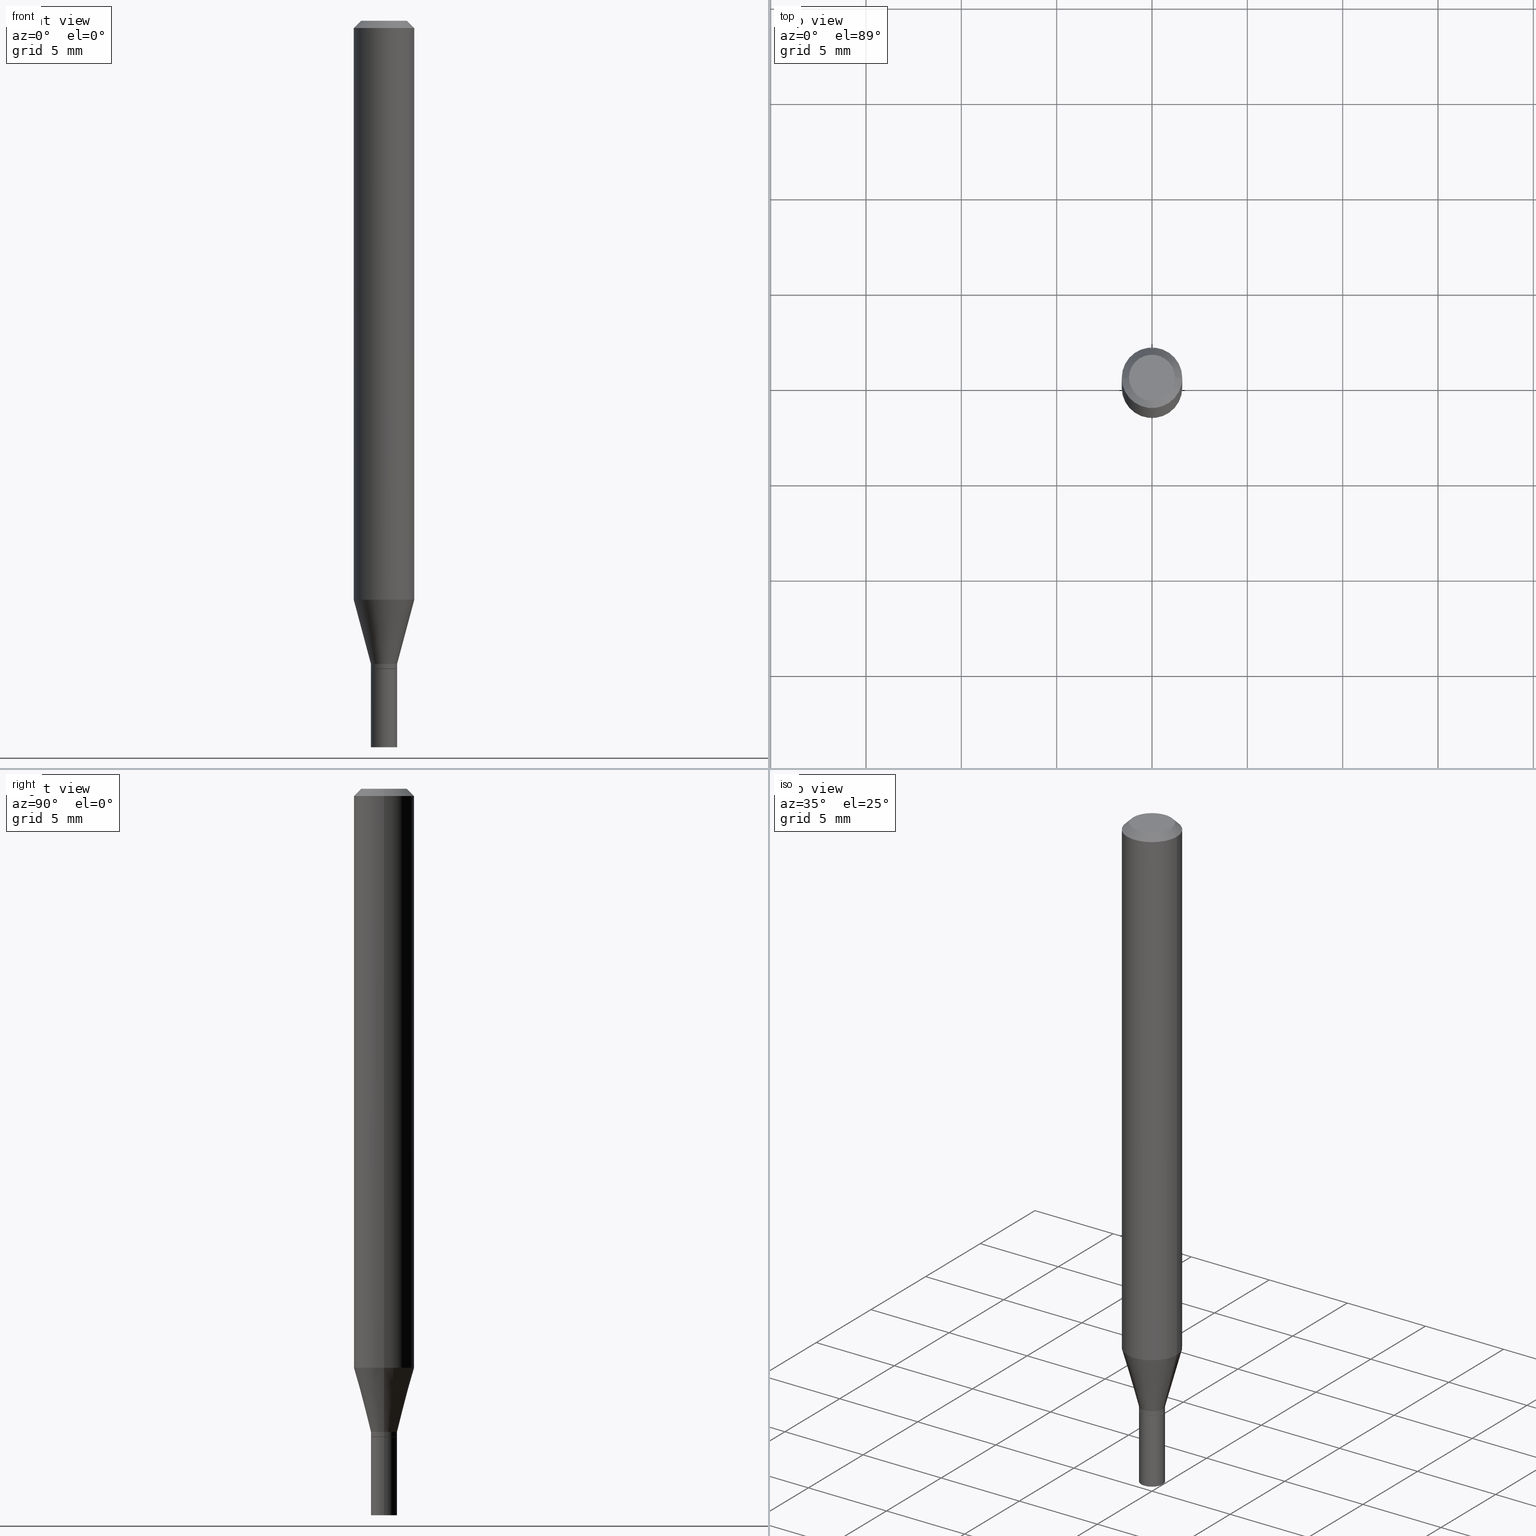
[diagram: canonical four-view strip — front | top / right | iso, engineering-drawing reading convention]
A machine part, canonical four-view strip (front | top / right | iso — engineering-drawing reading convention). The complete STEP part file that produces these views, byte-faithful:
ISO-10303-21;
HEADER;
FILE_DESCRIPTION (( 'STEP AP203' ),
    '1' );
FILE_NAME ('00492.STEP',
    '2024-03-19T21:22:50',
    ( '' ),
    ( '' ),
    'SwSTEP 2.0',
    'SolidWorks 2023',
    '' );
FILE_SCHEMA (( 'CONFIG_CONTROL_DESIGN' ));
ENDSEC;

DATA;
#1 = CALENDAR_DATE ( 2024, 19, 3 ) ;
#2 = CARTESIAN_POINT ( 'NONE',  ( 3.272037262675712888E-29, -4.671602031372128143E-15, -1.338000000000000078 ) ) ;
#3 = AXIS2_PLACEMENT_3D ( 'NONE', #343, #32, #169 ) ;
#4 = DIRECTION ( 'NONE',  ( 0.7071067811865656694, -2.468850131082446387E-15, 0.7071067811865294761 ) ) ;
#5 = CC_DESIGN_APPROVAL ( #305, ( #27 ) ) ;
#6 = DIRECTION ( 'NONE',  ( -1.000000000000000000, 6.982962677686266711E-15, 0.000000000000000000 ) ) ;
#7 = ORIENTED_EDGE ( 'NONE', *, *, #321, .T. ) ;
#8 =( CONVERSION_BASED_UNIT ( 'INCH', #316 ) LENGTH_UNIT ( ) NAMED_UNIT ( #166 ) );
#9 = PERSON_AND_ORGANIZATION ( #226, #11 ) ;
#10 = AXIS2_PLACEMENT_3D ( 'NONE', #268, #262, #82 ) ;
#11 = ORGANIZATION ( 'UNSPECIFIED', 'UNSPECIFIED', '' ) ;
#12 = DIRECTION ( 'NONE',  ( 1.000000000000000000, 0.000000000000000000, 0.000000000000000000 ) ) ;
#13 = DIRECTION ( 'NONE',  ( -2.445468806185136597E-29, 3.491481338843145583E-15, 1.000000000000000000 ) ) ;
#14 = ADVANCED_FACE ( 'NONE', ( #187 ), #314, .T. ) ;
#15 = CARTESIAN_POINT ( 'NONE',  ( 3.668203209277705088E-31, -5.237222008264718399E-17, -0.01499999999999999944 ) ) ;
#16 = VECTOR ( 'NONE', #221, 39.37007874015748143 ) ;
#17 = LINE ( 'NONE', #53, #154 ) ;
#18 = ORIENTED_EDGE ( 'NONE', *, *, #253, .F. ) ;
#19 = EDGE_CURVE ( 'NONE', #237, #92, #354, .T. ) ;
#20 = FACE_OUTER_BOUND ( 'NONE', #96, .T. ) ;
#21 = EDGE_CURVE ( 'NONE', #133, #28, #128, .T. ) ;
#22 = CARTESIAN_POINT ( 'NONE',  ( 0.02699999999999992684, -4.825227210281226768E-15, -1.328000000000000069 ) ) ;
#23 = ORIENTED_EDGE ( 'NONE', *, *, #257, .F. ) ;
#24 = DIRECTION ( 'NONE',  ( -0.7071067811865420216, 2.468850131082199474E-15, -0.7071067811865530128 ) ) ;
#25 = VERTEX_POINT ( 'NONE', #405 ) ;
#26 = CARTESIAN_POINT ( 'NONE',  ( 3.270814528272620647E-29, -4.669856290702708218E-15, -1.337500000000000133 ) ) ;
#27 = PRODUCT_DEFINITION_FORMATION_WITH_SPECIFIED_SOURCE ( 'ANY', '', #320, .NOT_KNOWN. ) ;
#28 = VERTEX_POINT ( 'NONE', #333 ) ;
#29 = ORIENTED_EDGE ( 'NONE', *, *, #347, .F. ) ;
#30 = VERTEX_POINT ( 'NONE', #22 ) ;
#31 = FACE_OUTER_BOUND ( 'NONE', #464, .T. ) ;
#32 = DIRECTION ( 'NONE',  ( -2.445468806185136597E-29, 3.491481338843145583E-15, 1.000000000000000000 ) ) ;
#33 = ORIENTED_EDGE ( 'NONE', *, *, #384, .T. ) ;
#34 = DIRECTION ( 'NONE',  ( -2.445468806185136597E-29, 3.491481338843145583E-15, 1.000000000000000000 ) ) ;
#35 = DIRECTION ( 'NONE',  ( -2.445468806185136597E-29, 3.491481338843145583E-15, 1.000000000000000000 ) ) ;
#36 = PRODUCT_RELATED_PRODUCT_CATEGORY ( 'detail', '', ( #320 ) ) ;
#37 = AXIS2_PLACEMENT_3D ( 'NONE', #360, #325, #12 ) ;
#38 = CC_DESIGN_APPROVAL ( #66, ( #269 ) ) ;
#39 = CARTESIAN_POINT ( 'NONE',  ( -0.02699999999999992684, 1.918465386552265303E-16, -1.328112474368820963E-30 ) ) ;
#40 = PERSON_AND_ORGANIZATION ( #226, #11 ) ;
#41 = DATE_TIME_ROLE ( 'classification_date' ) ;
#42 = CARTESIAN_POINT ( 'NONE',  ( 3.247582574613861342E-29, -4.636687217983698072E-15, -1.328000000000000069 ) ) ;
#43 = DIRECTION ( 'NONE',  ( 1.000000000000000000, -6.982962677686266711E-15, 0.000000000000000000 ) ) ;
#44 = APPROVAL_ROLE ( '' ) ;
#45 = DIRECTION ( 'NONE',  ( 1.000000000000000000, -6.982962677686267499E-15, 4.852736867747366768E-29 ) ) ;
#46 = PERSON_AND_ORGANIZATION_ROLE ( 'design_owner' ) ;
#47 = EDGE_CURVE ( 'NONE', #92, #25, #160, .T. ) ;
#48 = APPROVAL_STATUS ( 'not_yet_approved' ) ;
#49 = CARTESIAN_POINT ( 'NONE',  ( -0.02699999999999999969, -4.762565481163196334E-15, -1.338000000000000078 ) ) ;
#50 = CIRCLE ( 'NONE', #140, 0.02649999999999999925 ) ;
#51 = EDGE_CURVE ( 'NONE', #101, #242, #94, .T. ) ;
#52 = VECTOR ( 'NONE', #345, 39.37007874015748143 ) ;
#53 = CARTESIAN_POINT ( 'NONE',  ( 0.02699999999999999969, -1.885399922975291894E-16, 1.316567729464902510E-30 ) ) ;
#54 = EDGE_LOOP ( 'NONE', ( #277, #276, #411, #433 ) ) ;
#55 = ORIENTED_EDGE ( 'NONE', *, *, #59, .T. ) ;
#56 = DIRECTION ( 'NONE',  ( 1.000000000000000000, -6.982962677686277755E-15, 0.000000000000000000 ) ) ;
#57 = CARTESIAN_POINT ( 'NONE',  ( 0.04749999999999999362, -4.035134999187574186E-16, 2.354505479474186932E-16 ) ) ;
#58 = DIRECTION ( 'NONE',  ( 1.000000000000000000, -6.982962677686277755E-15, 0.000000000000000000 ) ) ;
#59 = EDGE_CURVE ( 'NONE', #237, #30, #330, .T. ) ;
#60 = EDGE_LOOP ( 'NONE', ( #141, #55, #350, #329 ) ) ;
#61 = FACE_OUTER_BOUND ( 'NONE', #365, .T. ) ;
#62 = CONICAL_SURFACE ( 'NONE', #246, 0.02699999999999992684, 0.2617993877991494633 ) ;
#63 = VERTEX_POINT ( 'NONE', #49 ) ;
#64 = DIRECTION ( 'NONE',  ( -2.445468806185136597E-29, 3.491481338843145583E-15, 1.000000000000000000 ) ) ;
#65 = EDGE_CURVE ( 'NONE', #159, #428, #17, .T. ) ;
#66 = APPROVAL ( #397, 'UNSPECIFIED' ) ;
#67 = DIRECTION ( 'NONE',  ( -2.445468806185136597E-29, 3.491481338843145583E-15, 1.000000000000000000 ) ) ;
#68 = DIRECTION ( 'NONE',  ( 1.000000000000000000, -6.982962677686261189E-15, 0.000000000000000000 ) ) ;
#69 = EDGE_LOOP ( 'NONE', ( #98, #410 ) ) ;
#70 = DIRECTION ( 'NONE',  ( 1.000000000000000000, -6.982962677686267499E-15, 4.852736867747366768E-29 ) ) ;
#71 = VECTOR ( 'NONE', #4, 39.37007874015748143 ) ;
#72 = CC_DESIGN_APPROVAL ( #125, ( #403 ) ) ;
#73 = LINE ( 'NONE', #213, #307 ) ;
#74 = APPROVAL_ROLE ( '' ) ;
#75 = SECURITY_CLASSIFICATION_LEVEL ( 'unclassified' ) ;
#76 = MECHANICAL_CONTEXT ( 'NONE', #97, 'mechanical' ) ;
#77 = AXIS2_PLACEMENT_3D ( 'NONE', #324, #423, #109 ) ;
#78 = CYLINDRICAL_SURFACE ( 'NONE', #218, 0.06250000000000000000 ) ;
#79 = ORIENTED_EDGE ( 'NONE', *, *, #47, .T. ) ;
#80 = APPROVAL_DATE_TIME ( #429, #66 ) ;
#81 = LINE ( 'NONE', #440, #16 ) ;
#82 = DIRECTION ( 'NONE',  ( 1.000000000000000000, -6.982962677686266711E-15, 4.876176775795935793E-29 ) ) ;
#83 = CALENDAR_DATE ( 2024, 19, 3 ) ;
#84 = AXIS2_PLACEMENT_3D ( 'NONE', #42, #122, #366 ) ;
#85 = ADVANCED_FACE ( 'NONE', ( #20 ), #444, .F. ) ;
#86 = LOCAL_TIME ( 17, 22, 50.00000000000000000, #117 ) ;
#87 = FACE_OUTER_BOUND ( 'NONE', #54, .T. ) ;
#88 = DIRECTION ( 'NONE',  ( -0.7071067811865656694, 7.493145998870420424E-15, 0.7071067811865294761 ) ) ;
#89 = AXIS2_PLACEMENT_3D ( 'NONE', #283, #422, #466 ) ;
#90 = DIRECTION ( 'NONE',  ( 1.000000000000000000, -6.982962677686265922E-15, 4.876176775795935793E-29 ) ) ;
#91 = EDGE_CURVE ( 'NONE', #129, #133, #50, .T. ) ;
#92 = VERTEX_POINT ( 'NONE', #163 ) ;
#93 = CARTESIAN_POINT ( 'NONE',  ( -0.02699999999999999969, -4.762565481163196334E-15, -1.500000000000000222 ) ) ;
#94 = LINE ( 'NONE', #200, #189 ) ;
#95 = LINE ( 'NONE', #241, #399 ) ;
#96 = EDGE_LOOP ( 'NONE', ( #339, #203 ) ) ;
#97 = APPLICATION_CONTEXT ( 'configuration controlled 3d designs of mechanical parts and assemblies' ) ;
#98 = ORIENTED_EDGE ( 'NONE', *, *, #253, .T. ) ;
#99 = CARTESIAN_POINT ( 'NONE',  ( 3.668203209277704895E-29, -5.237222008264718177E-15, -1.500000000000000222 ) ) ;
#100 = VERTEX_POINT ( 'NONE', #93 ) ;
#101 = VERTEX_POINT ( 'NONE', #57 ) ;
#102 = DIRECTION ( 'NONE',  ( -2.445468806185136597E-29, 3.491481338843145583E-15, 1.000000000000000000 ) ) ;
#103 = DIRECTION ( 'NONE',  ( 1.000000000000000000, -6.982962677686265922E-15, 4.876176775795936353E-29 ) ) ;
#104 = ADVANCED_FACE ( 'NONE', ( #270 ), #338, .T. ) ;
#105 = DIRECTION ( 'NONE',  ( 1.000000000000000000, -6.982962677686262766E-15, 0.000000000000000000 ) ) ;
#106 = PLANE ( 'NONE',  #231 ) ;
#107 = ORIENTED_EDGE ( 'NONE', *, *, #91, .T. ) ;
#108 = DIRECTION ( 'NONE',  ( -2.445468806185136597E-29, 3.491481338843145583E-15, 1.000000000000000000 ) ) ;
#109 = DIRECTION ( 'NONE',  ( 1.000000000000000000, -6.982962677686279332E-15, 0.000000000000000000 ) ) ;
#110 =( GEOMETRIC_REPRESENTATION_CONTEXT ( 3 ) GLOBAL_UNCERTAINTY_ASSIGNED_CONTEXT ( ( #362 ) ) GLOBAL_UNIT_ASSIGNED_CONTEXT ( ( #8, #220, #255 ) ) REPRESENTATION_CONTEXT ( 'NONE', 'WORKASPACE' ) );
#111 = PERSON_AND_ORGANIZATION ( #226, #11 ) ;
#112 = DIRECTION ( 'NONE',  ( -2.445468806185136597E-29, 3.491481338843145583E-15, 1.000000000000000000 ) ) ;
#113 = CC_DESIGN_PERSON_AND_ORGANIZATION_ASSIGNMENT ( #391, #46, ( #320 ) ) ;
#114 = ADVANCED_FACE ( 'NONE', ( #256 ), #106, .F. ) ;
#115 = DESIGN_CONTEXT ( 'detailed design', #165, 'design' ) ;
#116 = FACE_OUTER_BOUND ( 'NONE', #299, .T. ) ;
#117 = COORDINATED_UNIVERSAL_TIME_OFFSET ( 5, 0, .BEHIND. ) ;
#118 = CIRCLE ( 'NONE', #201, 0.02649999999999999925 ) ;
#119 = CIRCLE ( 'NONE', #434, 0.02699999999999992684 ) ;
#120 = APPROVAL_DATE_TIME ( #222, #125 ) ;
#121 = CYLINDRICAL_SURFACE ( 'NONE', #10, 0.06250000000000000000 ) ;
#122 = DIRECTION ( 'NONE',  ( -2.445468806185136597E-29, 3.491481338843145583E-15, 1.000000000000000000 ) ) ;
#123 = VECTOR ( 'NONE', #445, 39.37007874015748854 ) ;
#124 = AXIS2_PLACEMENT_3D ( 'NONE', #248, #64, #105 ) ;
#125 = APPROVAL ( #217, 'UNSPECIFIED' ) ;
#126 = CARTESIAN_POINT ( 'NONE',  ( 0.000000000000000000, 0.000000000000000000, 0.000000000000000000 ) ) ;
#127 = ADVANCED_FACE ( 'NONE', ( #144 ), #148, .T. ) ;
#128 = LINE ( 'NONE', #205, #245 ) ;
#129 = VERTEX_POINT ( 'NONE', #215 ) ;
#130 = CARTESIAN_POINT ( 'NONE',  ( -0.06250000000000000000, 4.440892098500626162E-16, -3.074334431409316114E-30 ) ) ;
#131 = EDGE_CURVE ( 'NONE', #63, #428, #306, .T. ) ;
#132 = CIRCLE ( 'NONE', #401, 0.06250000000000000000 ) ;
#133 = VERTEX_POINT ( 'NONE', #196 ) ;
#134 = DIRECTION ( 'NONE',  ( -2.445468806185136877E-29, 3.491481338843145188E-15, 1.000000000000000000 ) ) ;
#135 = VERTEX_POINT ( 'NONE', #137 ) ;
#136 = CARTESIAN_POINT ( 'NONE',  ( -0.04749999999999999362, 3.578768372314215436E-16, 2.354505479474137135E-16 ) ) ;
#137 = CARTESIAN_POINT ( 'NONE',  ( 0.06250000000000000000, -4.610543691205524908E-15, -1.195512196331304677 ) ) ;
#138 = ORIENTED_EDGE ( 'NONE', *, *, #236, .F. ) ;
#139 = CYLINDRICAL_SURFACE ( 'NONE', #457, 0.02699999999999992684 ) ;
#140 = AXIS2_PLACEMENT_3D ( 'NONE', #336, #404, #297 ) ;
#141 = ORIENTED_EDGE ( 'NONE', *, *, #19, .F. ) ;
#142 =( LENGTH_UNIT ( ) NAMED_UNIT ( * ) SI_UNIT ( $, .METRE. ) );
#143 = AXIS2_PLACEMENT_3D ( 'NONE', #292, #368, #68 ) ;
#144 = FACE_OUTER_BOUND ( 'NONE', #402, .T. ) ;
#145 = DIRECTION ( 'NONE',  ( 1.000000000000000000, -6.982962677686261189E-15, 0.000000000000000000 ) ) ;
#146 = CARTESIAN_POINT ( 'NONE',  ( 0.000000000000000000, 0.000000000000000000, 0.000000000000000000 ) ) ;
#147 = CARTESIAN_POINT ( 'NONE',  ( 0.02699999999999992337, -4.858396283000236125E-15, -1.337500000000000133 ) ) ;
#148 = CONICAL_SURFACE ( 'NONE', #89, 0.02649999999999999925, 0.7853981633974739252 ) ;
#149 = VECTOR ( 'NONE', #302, 39.37007874015748854 ) ;
#150 = COORDINATED_UNIVERSAL_TIME_OFFSET ( 5, 0, .BEHIND. ) ;
#151 = CARTESIAN_POINT ( 'NONE',  ( 3.668203209277705088E-31, -5.237222008264718399E-17, -0.01499999999999999944 ) ) ;
#152 = ORIENTED_EDGE ( 'NONE', *, *, #223, .F. ) ;
#153 = CC_DESIGN_PERSON_AND_ORGANIZATION_ASSIGNMENT ( #431, #188, ( #269 ) ) ;
#154 = VECTOR ( 'NONE', #230, 39.37007874015748143 ) ;
#155 = APPLICATION_PROTOCOL_DEFINITION ( 'international standard', 'config_control_design', 1994, #97 ) ;
#156 = MANIFOLD_SOLID_BREP ( 'Body-Move/Copy2[2]', #279 ) ;
#157 = EDGE_CURVE ( 'NONE', #420, #25, #95, .T. ) ;
#158 = AXIS2_PLACEMENT_3D ( 'NONE', #438, #356, #346 ) ;
#159 = VERTEX_POINT ( 'NONE', #409 ) ;
#160 = LINE ( 'NONE', #130, #425 ) ;
#161 = CC_DESIGN_PERSON_AND_ORGANIZATION_ASSIGNMENT ( #40, #184, ( #403 ) ) ;
#162 = EDGE_CURVE ( 'NONE', #133, #129, #118, .T. ) ;
#163 = CARTESIAN_POINT ( 'NONE',  ( -0.06250000000000000000, -3.730019314000071411E-15, -1.195512196331304677 ) ) ;
#164 = ORIENTED_EDGE ( 'NONE', *, *, #419, .T. ) ;
#165 = APPLICATION_CONTEXT ( 'configuration controlled 3d designs of mechanical parts and assemblies' ) ;
#166 = DIMENSIONAL_EXPONENTS ( 1.000000000000000000, 0.000000000000000000, 0.000000000000000000, 0.000000000000000000, 0.000000000000000000, 0.000000000000000000, 0.000000000000000000 ) ;
#167 = ORIENTED_EDGE ( 'NONE', *, *, #236, .T. ) ;
#168 = CARTESIAN_POINT ( 'NONE',  ( 3.247582574613861342E-29, -4.636687217983698072E-15, -1.328000000000000069 ) ) ;
#169 = DIRECTION ( 'NONE',  ( 1.000000000000000000, -6.982962677686261189E-15, 0.000000000000000000 ) ) ;
#170 = EDGE_CURVE ( 'NONE', #159, #100, #234, .T. ) ;
#171 = ORIENTED_EDGE ( 'NONE', *, *, #272, .T. ) ;
#172 = DIRECTION ( 'NONE',  ( -1.000000000000000000, 6.982962677686266711E-15, 0.000000000000000000 ) ) ;
#173 = AXIS2_PLACEMENT_3D ( 'NONE', #370, #407, #90 ) ;
#174 = ORIENTED_EDGE ( 'NONE', *, *, #65, .F. ) ;
#175 = CARTESIAN_POINT ( 'NONE',  ( 3.668203209277705088E-31, -5.237222008264718399E-17, -0.01499999999999999944 ) ) ;
#176 = CONICAL_SURFACE ( 'NONE', #450, 0.06250000000000000000, 0.7853981633974405074 ) ;
#177 = ADVANCED_FACE ( 'NONE', ( #294 ), #121, .T. ) ;
#178 = DIRECTION ( 'NONE',  ( 2.438088387897960049E-29, -3.491481338843145188E-15, -1.000000000000000000 ) ) ;
#179 = CC_DESIGN_PERSON_AND_ORGANIZATION_ASSIGNMENT ( #254, #393, ( #27 ) ) ;
#180 = CARTESIAN_POINT ( 'NONE',  ( -0.02699999999999992684, -4.087429996664271131E-15, -1.328000000000000069 ) ) ;
#181 = DATE_AND_TIME ( #83, #225 ) ;
#182 = APPROVAL_ROLE ( '' ) ;
#183 = AXIS2_PLACEMENT_3D ( 'NONE', #439, #13, #229 ) ;
#184 = PERSON_AND_ORGANIZATION_ROLE ( 'creator' ) ;
#185 = EDGE_CURVE ( 'NONE', #129, #252, #186, .T. ) ;
#186 = LINE ( 'NONE', #442, #71 ) ;
#187 = FACE_OUTER_BOUND ( 'NONE', #60, .T. ) ;
#188 = PERSON_AND_ORGANIZATION_ROLE ( 'classification_officer' ) ;
#189 = VECTOR ( 'NONE', #394, 39.37007874015748143 ) ;
#190 = CIRCLE ( 'NONE', #183, 0.02699999999999992337 ) ;
#191 = ADVANCED_FACE ( 'NONE', ( #116 ), #78, .T. ) ;
#192 = FACE_OUTER_BOUND ( 'NONE', #406, .T. ) ;
#193 = ORIENTED_EDGE ( 'NONE', *, *, #19, .T. ) ;
#194 = CIRCLE ( 'NONE', #261, 0.02699999999999999969 ) ;
#195 = ORIENTED_EDGE ( 'NONE', *, *, #321, .F. ) ;
#196 = CARTESIAN_POINT ( 'NONE',  ( -0.02649999999999999925, -4.480658979221591409E-15, -1.338000000000000078 ) ) ;
#197 = EDGE_CURVE ( 'NONE', #428, #63, #273, .T. ) ;
#198 = ORIENTED_EDGE ( 'NONE', *, *, #264, .F. ) ;
#199 = LINE ( 'NONE', #39, #326 ) ;
#200 = CARTESIAN_POINT ( 'NONE',  ( 0.06250000000000000000, -4.811533449433679005E-16, -0.01499999999999999944 ) ) ;
#201 = AXIS2_PLACEMENT_3D ( 'NONE', #206, #376, #58 ) ;
#202 = CC_DESIGN_SECURITY_CLASSIFICATION ( #269, ( #27 ) ) ;
#203 = ORIENTED_EDGE ( 'NONE', *, *, #327, .F. ) ;
#204 = FACE_OUTER_BOUND ( 'NONE', #341, .T. ) ;
#205 = CARTESIAN_POINT ( 'NONE',  ( -0.02649999999999999925, -4.483308206395701821E-15, -1.338000000000000078 ) ) ;
#206 = CARTESIAN_POINT ( 'NONE',  ( 3.272037262675712888E-29, -4.671602031372128143E-15, -1.338000000000000078 ) ) ;
#207 = CC_DESIGN_PERSON_AND_ORGANIZATION_ASSIGNMENT ( #111, #322, ( #27 ) ) ;
#208 = DIRECTION ( 'NONE',  ( -2.445468806185136597E-29, 3.491481338843145583E-15, 1.000000000000000000 ) ) ;
#209 = ORIENTED_EDGE ( 'NONE', *, *, #59, .F. ) ;
#210 = DIRECTION ( 'NONE',  ( 1.000000000000000000, -6.982962677686266711E-15, 0.000000000000000000 ) ) ;
#211 = CONICAL_SURFACE ( 'NONE', #331, 0.02649999999999999925, 0.7853981633974739252 ) ;
#212 = FACE_OUTER_BOUND ( 'NONE', #69, .T. ) ;
#213 = CARTESIAN_POINT ( 'NONE',  ( 0.06250000000000000000, -4.364351673553916694E-16, 3.047610484872459871E-30 ) ) ;
#214 = APPLICATION_PROTOCOL_DEFINITION ( 'international standard', 'config_control_design', 1994, #165 ) ;
#215 = CARTESIAN_POINT ( 'NONE',  ( 0.02649999999999999925, -4.856650542330814622E-15, -1.338000000000000078 ) ) ;
#216 = COORDINATED_UNIVERSAL_TIME_OFFSET ( 5, 0, .BEHIND. ) ;
#217 = APPROVAL_STATUS ( 'not_yet_approved' ) ;
#218 = AXIS2_PLACEMENT_3D ( 'NONE', #219, #108, #353 ) ;
#219 = CARTESIAN_POINT ( 'NONE',  ( 0.000000000000000000, 0.000000000000000000, 0.000000000000000000 ) ) ;
#220 =( NAMED_UNIT ( * ) PLANE_ANGLE_UNIT ( ) SI_UNIT ( $, .RADIAN. ) );
#221 = DIRECTION ( 'NONE',  ( -2.445468806185136877E-29, 3.491481338843145188E-15, 1.000000000000000000 ) ) ;
#222 = DATE_AND_TIME ( #355, #274 ) ;
#223 = EDGE_CURVE ( 'NONE', #242, #25, #132, .T. ) ;
#224 = AXIS2_PLACEMENT_3D ( 'NONE', #2, #112, #380 ) ;
#225 = LOCAL_TIME ( 17, 22, 50.00000000000000000, #398 ) ;
#226 = PERSON ( 'UNSPECIFIED', 'UNSPECIFIED', 'UNSPECIFIED', ('UNSPECIFIED'), ('UNSPECIFIED'), ('UNSPECIFIED') ) ;
#227 = ADVANCED_FACE ( 'NONE', ( #263 ), #361, .F. ) ;
#228 = ORIENTED_EDGE ( 'NONE', *, *, #162, .T. ) ;
#229 = DIRECTION ( 'NONE',  ( 1.000000000000000000, -6.982962677686280910E-15, 0.000000000000000000 ) ) ;
#230 = DIRECTION ( 'NONE',  ( -2.445468806185136877E-29, 3.491481338843145188E-15, 1.000000000000000000 ) ) ;
#231 = AXIS2_PLACEMENT_3D ( 'NONE', #392, #462, #395 ) ;
#232 = DIRECTION ( 'NONE',  ( -2.445468806185136597E-29, 3.491481338843145583E-15, 1.000000000000000000 ) ) ;
#233 = EDGE_LOOP ( 'NONE', ( #452, #387 ) ) ;
#234 = CIRCLE ( 'NONE', #3, 0.02699999999999999969 ) ;
#235 = CIRCLE ( 'NONE', #124, 0.06250000000000000000 ) ;
#236 = EDGE_CURVE ( 'NONE', #135, #242, #73, .T. ) ;
#237 = VERTEX_POINT ( 'NONE', #180 ) ;
#238 = DIRECTION ( 'NONE',  ( 2.438088387897960049E-29, -3.491481338843145188E-15, -1.000000000000000000 ) ) ;
#239 = ORIENTED_EDGE ( 'NONE', *, *, #419, .F. ) ;
#240 = CARTESIAN_POINT ( 'NONE',  ( -5.757869704046039586E-45, 8.220711943787967025E-31, 2.354505479474161294E-16 ) ) ;
#241 = CARTESIAN_POINT ( 'NONE',  ( -0.06250000000000000000, 3.840629472727444916E-16, -0.01499999999999999944 ) ) ;
#242 = VERTEX_POINT ( 'NONE', #287 ) ;
#243 = ORIENTED_EDGE ( 'NONE', *, *, #51, .F. ) ;
#244 = DIRECTION ( 'NONE',  ( -2.445468806185136597E-29, 3.491481338843145583E-15, 1.000000000000000000 ) ) ;
#245 = VECTOR ( 'NONE', #88, 39.37007874015748143 ) ;
#246 = AXIS2_PLACEMENT_3D ( 'NONE', #168, #424, #309 ) ;
#247 = ORIENTED_EDGE ( 'NONE', *, *, #448, .F. ) ;
#248 = CARTESIAN_POINT ( 'NONE',  ( 2.923587783542086622E-29, -4.174108523850133238E-15, -1.195512196331304677 ) ) ;
#249 = DIRECTION ( 'NONE',  ( -2.445468806185136597E-29, 3.491481338843145583E-15, 1.000000000000000000 ) ) ;
#250 = DIRECTION ( 'NONE',  ( -2.445468806185136597E-29, 3.491481338843145583E-15, 1.000000000000000000 ) ) ;
#251 = CARTESIAN_POINT ( 'NONE',  ( 0.02699999999999999969, -4.860142023669657629E-15, -1.338000000000000078 ) ) ;
#252 = VERTEX_POINT ( 'NONE', #147 ) ;
#253 = EDGE_CURVE ( 'NONE', #420, #101, #390, .T. ) ;
#254 = PERSON_AND_ORGANIZATION ( #226, #11 ) ;
#255 =( NAMED_UNIT ( * ) SI_UNIT ( $, .STERADIAN. ) SOLID_ANGLE_UNIT ( ) );
#256 = FACE_OUTER_BOUND ( 'NONE', #233, .T. ) ;
#257 = EDGE_CURVE ( 'NONE', #252, #30, #81, .T. ) ;
#258 = CC_DESIGN_DATE_AND_TIME_ASSIGNMENT ( #357, #41, ( #269 ) ) ;
#259 = CALENDAR_DATE ( 2024, 19, 3 ) ;
#260 = CLOSED_SHELL ( 'NONE', ( #310, #85, #271, #227 ) ) ;
#261 = AXIS2_PLACEMENT_3D ( 'NONE', #99, #244, #145 ) ;
#262 = DIRECTION ( 'NONE',  ( -2.445468806185136597E-29, 3.491481338843145583E-15, 1.000000000000000000 ) ) ;
#263 = FACE_OUTER_BOUND ( 'NONE', #301, .T. ) ;
#264 = EDGE_CURVE ( 'NONE', #252, #28, #190, .T. ) ;
#265 = CARTESIAN_POINT ( 'NONE',  ( 1.885399922975619024E-16, 0.02699999999999532982, -1.338000000000000078 ) ) ;
#266 = CC_DESIGN_DATE_AND_TIME_ASSIGNMENT ( #181, #312, ( #403 ) ) ;
#267 = DIRECTION ( 'NONE',  ( -2.445468806185136597E-29, 3.491481338843145583E-15, 1.000000000000000000 ) ) ;
#268 = CARTESIAN_POINT ( 'NONE',  ( 0.000000000000000000, 0.000000000000000000, 0.000000000000000000 ) ) ;
#269 = SECURITY_CLASSIFICATION ( '', '', #75 ) ;
#270 = FACE_OUTER_BOUND ( 'NONE', #388, .T. ) ;
#271 = ADVANCED_FACE ( 'NONE', ( #87 ), #367, .T. ) ;
#272 = EDGE_CURVE ( 'NONE', #92, #135, #280, .T. ) ;
#273 = CIRCLE ( 'NONE', #143, 0.02699999999999999969 ) ;
#274 = LOCAL_TIME ( 17, 22, 50.00000000000000000, #427 ) ;
#275 = DIRECTION ( 'NONE',  ( -2.445468806185136877E-29, 3.491481338843145188E-15, 1.000000000000000000 ) ) ;
#276 = ORIENTED_EDGE ( 'NONE', *, *, #327, .T. ) ;
#277 = ORIENTED_EDGE ( 'NONE', *, *, #335, .F. ) ;
#278 = LINE ( 'NONE', #342, #52 ) ;
#279 = CLOSED_SHELL ( 'NONE', ( #313, #352, #328, #191, #400, #14, #177, #104, #436, #114, #127, #291 ) ) ;
#280 = CIRCLE ( 'NONE', #158, 0.06250000000000000000 ) ;
#281 = ORIENTED_EDGE ( 'NONE', *, *, #197, .T. ) ;
#282 = DIRECTION ( 'NONE',  ( 1.000000000000000000, -6.982962677686279332E-15, 0.000000000000000000 ) ) ;
#283 = CARTESIAN_POINT ( 'NONE',  ( 3.272037262675712888E-29, -4.671602031372128143E-15, -1.338000000000000078 ) ) ;
#284 = FACE_OUTER_BOUND ( 'NONE', #413, .T. ) ;
#285 = APPROVAL_PERSON_ORGANIZATION ( #359, #305, #44 ) ;
#286 = APPROVAL_DATE_TIME ( #319, #305 ) ;
#287 = CARTESIAN_POINT ( 'NONE',  ( 0.06250000000000000000, -4.888073874380388472E-16, -0.01499999999999999944 ) ) ;
#288 = CALENDAR_DATE ( 2024, 19, 3 ) ;
#289 = CIRCLE ( 'NONE', #340, 0.02699999999999992337 ) ;
#290 = LOCAL_TIME ( 17, 22, 50.00000000000000000, #150 ) ;
#291 = ADVANCED_FACE ( 'NONE', ( #192 ), #139, .T. ) ;
#292 = CARTESIAN_POINT ( 'NONE',  ( 3.272037262675712888E-29, -4.671602031372128143E-15, -1.338000000000000078 ) ) ;
#293 = AXIS2_PLACEMENT_3D ( 'NONE', #437, #267, #45 ) ;
#294 = FACE_OUTER_BOUND ( 'NONE', #458, .T. ) ;
#295 = ORIENTED_EDGE ( 'NONE', *, *, #157, .F. ) ;
#296 = CARTESIAN_POINT ( 'NONE',  ( -0.02699999999999992684, -4.444840679328471640E-15, -1.328000000000000069 ) ) ;
#297 = DIRECTION ( 'NONE',  ( 1.000000000000000000, -6.982962677686277755E-15, 0.000000000000000000 ) ) ;
#298 = AXIS2_PLACEMENT_3D ( 'NONE', #240, #389, #70 ) ;
#299 = EDGE_LOOP ( 'NONE', ( #164, #79, #152, #138 ) ) ;
#300 = CARTESIAN_POINT ( 'NONE',  ( 0.000000000000000000, 0.000000000000000000, 0.000000000000000000 ) ) ;
#301 = EDGE_LOOP ( 'NONE', ( #281, #447 ) ) ;
#302 = DIRECTION ( 'NONE',  ( 0.2588190451025207395, 1.565188264969626109E-15, 0.9659258262890682012 ) ) ;
#303 = ORIENTED_EDGE ( 'NONE', *, *, #185, .F. ) ;
#304 = DIRECTION ( 'NONE',  ( 1.000000000000000000, -6.982962677686280910E-15, 0.000000000000000000 ) ) ;
#305 = APPROVAL ( #48, 'UNSPECIFIED' ) ;
#306 = CIRCLE ( 'NONE', #224, 0.02699999999999999969 ) ;
#307 = VECTOR ( 'NONE', #323, 39.37007874015748143 ) ;
#308 = ORIENTED_EDGE ( 'NONE', *, *, #414, .F. ) ;
#309 = DIRECTION ( 'NONE',  ( 1.000000000000000000, -6.982962677686279332E-15, 0.000000000000000000 ) ) ;
#310 = ADVANCED_FACE ( 'NONE', ( #61 ), #375, .T. ) ;
#311 = DIRECTION ( 'NONE',  ( -1.000000000000000000, 6.982962677686265922E-15, -4.876176775795935793E-29 ) ) ;
#312 = DATE_TIME_ROLE ( 'creation_date' ) ;
#313 = ADVANCED_FACE ( 'NONE', ( #421 ), #461, .T. ) ;
#314 = CONICAL_SURFACE ( 'NONE', #77, 0.02699999999999992684, 0.2617993877991494633 ) ;
#315 = AXIS2_PLACEMENT_3D ( 'NONE', #126, #232, #373 ) ;
#316 = LENGTH_MEASURE_WITH_UNIT ( LENGTH_MEASURE( 0.02539999999999999897 ), #142 );
#317 = DIRECTION ( 'NONE',  ( 2.445468806185136597E-29, -3.491481338843145583E-15, -1.000000000000000000 ) ) ;
#318 = ORIENTED_EDGE ( 'NONE', *, *, #185, .T. ) ;
#319 = DATE_AND_TIME ( #1, #86 ) ;
#320 = PRODUCT ( '00492', '00492', '', ( #76 ) ) ;
#321 = EDGE_CURVE ( 'NONE', #28, #237, #199, .T. ) ;
#322 = PERSON_AND_ORGANIZATION_ROLE ( 'creator' ) ;
#323 = DIRECTION ( 'NONE',  ( -2.445468806185136877E-29, 3.491481338843145188E-15, 1.000000000000000000 ) ) ;
#324 = CARTESIAN_POINT ( 'NONE',  ( 3.247582574613861342E-29, -4.636687217983698072E-15, -1.328000000000000069 ) ) ;
#325 = DIRECTION ( 'NONE',  ( 0.000000000000000000, 0.000000000000000000, 1.000000000000000000 ) ) ;
#326 = VECTOR ( 'NONE', #275, 39.37007874015748143 ) ;
#327 = EDGE_CURVE ( 'NONE', #100, #159, #194, .T. ) ;
#328 = ADVANCED_FACE ( 'NONE', ( #204 ), #176, .T. ) ;
#329 = ORIENTED_EDGE ( 'NONE', *, *, #272, .F. ) ;
#330 = CIRCLE ( 'NONE', #84, 0.02699999999999992684 ) ;
#331 = AXIS2_PLACEMENT_3D ( 'NONE', #386, #348, #56 ) ;
#332 = ORIENTED_EDGE ( 'NONE', *, *, #335, .T. ) ;
#333 = CARTESIAN_POINT ( 'NONE',  ( -0.02699999999999992337, -4.478009752047480997E-15, -1.337500000000000133 ) ) ;
#334 = ORIENTED_EDGE ( 'NONE', *, *, #21, .F. ) ;
#335 = EDGE_CURVE ( 'NONE', #100, #63, #278, .T. ) ;
#336 = CARTESIAN_POINT ( 'NONE',  ( 3.272037262675712888E-29, -4.671602031372128143E-15, -1.338000000000000078 ) ) ;
#337 = PLANE ( 'NONE',  #349 ) ;
#338 = CONICAL_SURFACE ( 'NONE', #371, 0.06250000000000000000, 0.7853981633974405074 ) ;
#339 = ORIENTED_EDGE ( 'NONE', *, *, #170, .F. ) ;
#340 = AXIS2_PLACEMENT_3D ( 'NONE', #26, #34, #304 ) ;
#341 = EDGE_LOOP ( 'NONE', ( #460, #378, #377, #295 ) ) ;
#342 = CARTESIAN_POINT ( 'NONE',  ( -0.02699999999999999969, 1.918465386552270480E-16, -1.328112474368824466E-30 ) ) ;
#343 = CARTESIAN_POINT ( 'NONE',  ( 3.668203209277704895E-29, -5.237222008264718177E-15, -1.500000000000000222 ) ) ;
#344 = ORIENTED_EDGE ( 'NONE', *, *, #414, .T. ) ;
#345 = DIRECTION ( 'NONE',  ( -2.445468806185136877E-29, 3.491481338843145188E-15, 1.000000000000000000 ) ) ;
#346 = DIRECTION ( 'NONE',  ( 1.000000000000000000, -6.982962677686262766E-15, 0.000000000000000000 ) ) ;
#347 = EDGE_CURVE ( 'NONE', #30, #135, #418, .T. ) ;
#348 = DIRECTION ( 'NONE',  ( -2.445468806185136597E-29, 3.491481338843145583E-15, 1.000000000000000000 ) ) ;
#349 = AXIS2_PLACEMENT_3D ( 'NONE', #351, #178, #311 ) ;
#350 = ORIENTED_EDGE ( 'NONE', *, *, #347, .T. ) ;
#351 = CARTESIAN_POINT ( 'NONE',  ( 3.316907271900976096E-16, 0.04749999999999999362, -4.812008962134135024E-17 ) ) ;
#352 = ADVANCED_FACE ( 'NONE', ( #284 ), #211, .T. ) ;
#353 = DIRECTION ( 'NONE',  ( 1.000000000000000000, -6.982962677686266711E-15, 4.876176775795935793E-29 ) ) ;
#354 = LINE ( 'NONE', #296, #123 ) ;
#355 = CALENDAR_DATE ( 2024, 19, 3 ) ;
#356 = DIRECTION ( 'NONE',  ( -2.445468806185136597E-29, 3.491481338843145583E-15, 1.000000000000000000 ) ) ;
#357 = DATE_AND_TIME ( #259, #381 ) ;
#358 = AXIS2_PLACEMENT_3D ( 'NONE', #175, #67, #210 ) ;
#359 = PERSON_AND_ORGANIZATION ( #226, #11 ) ;
#360 = CARTESIAN_POINT ( 'NONE',  ( 0.000000000000000000, 0.000000000000000000, 0.000000000000000000 ) ) ;
#361 = PLANE ( 'NONE',  #396 ) ;
#362 = UNCERTAINTY_MEASURE_WITH_UNIT (LENGTH_MEASURE( 1.000000000000000082E-05 ), #8, 'distance_accuracy_value', 'NONE');
#363 = CIRCLE ( 'NONE', #298, 0.04749999999999999362 ) ;
#364 = APPROVAL_PERSON_ORGANIZATION ( #9, #66, #182 ) ;
#365 = EDGE_LOOP ( 'NONE', ( #454, #332, #451, #174 ) ) ;
#366 = DIRECTION ( 'NONE',  ( 1.000000000000000000, -6.982962677686279332E-15, 0.000000000000000000 ) ) ;
#367 = CYLINDRICAL_SURFACE ( 'NONE', #315, 0.02699999999999999969 ) ;
#368 = DIRECTION ( 'NONE',  ( -2.445468806185136597E-29, 3.491481338843145583E-15, 1.000000000000000000 ) ) ;
#369 = ORIENTED_EDGE ( 'NONE', *, *, #448, .T. ) ;
#370 = CARTESIAN_POINT ( 'NONE',  ( 3.576687321579069994E-29, -5.368277968210015545E-15, -1.500000000000000222 ) ) ;
#371 = AXIS2_PLACEMENT_3D ( 'NONE', #151, #317, #6 ) ;
#372 = AXIS2_PLACEMENT_3D ( 'NONE', #146, #208, #383 ) ;
#373 = DIRECTION ( 'NONE',  ( 1.000000000000000000, -6.982962677686266711E-15, 4.876176775795935232E-29 ) ) ;
#374 = ORIENTED_EDGE ( 'NONE', *, *, #264, .T. ) ;
#375 = CYLINDRICAL_SURFACE ( 'NONE', #443, 0.02699999999999999969 ) ;
#376 = DIRECTION ( 'NONE',  ( -2.445468806185136597E-29, 3.491481338843145583E-15, 1.000000000000000000 ) ) ;
#377 = ORIENTED_EDGE ( 'NONE', *, *, #223, .T. ) ;
#378 = ORIENTED_EDGE ( 'NONE', *, *, #51, .T. ) ;
#379 = CARTESIAN_POINT ( 'NONE',  ( 3.668203209277705088E-31, -5.237222008264718399E-17, -0.01499999999999999944 ) ) ;
#380 = DIRECTION ( 'NONE',  ( 1.000000000000000000, -6.982962677686261189E-15, 0.000000000000000000 ) ) ;
#381 = LOCAL_TIME ( 17, 22, 50.00000000000000000, #216 ) ;
#382 = EDGE_LOOP ( 'NONE', ( #374, #7, #308, #23 ) ) ;
#383 = DIRECTION ( 'NONE',  ( 1.000000000000000000, -6.982962677686265922E-15, 4.876176775795936353E-29 ) ) ;
#384 = EDGE_CURVE ( 'NONE', #25, #242, #416, .T. ) ;
#385 = ORIENTED_EDGE ( 'NONE', *, *, #157, .T. ) ;
#386 = CARTESIAN_POINT ( 'NONE',  ( 3.272037262675712888E-29, -4.671602031372128143E-15, -1.338000000000000078 ) ) ;
#387 = ORIENTED_EDGE ( 'NONE', *, *, #162, .F. ) ;
#388 = EDGE_LOOP ( 'NONE', ( #243, #18, #385, #33 ) ) ;
#389 = DIRECTION ( 'NONE',  ( -2.445468806185136597E-29, 3.491481338843145583E-15, 1.000000000000000000 ) ) ;
#390 = CIRCLE ( 'NONE', #293, 0.04749999999999999362 ) ;
#391 = PERSON_AND_ORGANIZATION ( #226, #11 ) ;
#392 = CARTESIAN_POINT ( 'NONE',  ( 3.272037262675712888E-29, -4.671602031372128143E-15, -1.338000000000000078 ) ) ;
#393 = PERSON_AND_ORGANIZATION_ROLE ( 'design_supplier' ) ;
#394 = DIRECTION ( 'NONE',  ( 0.7071067811865420216, -7.319954787623237113E-15, -0.7071067811865530128 ) ) ;
#395 = DIRECTION ( 'NONE',  ( 1.000000000000000000, -6.982962677686265922E-15, 4.876176775795935793E-29 ) ) ;
#396 = AXIS2_PLACEMENT_3D ( 'NONE', #265, #238, #456 ) ;
#397 = APPROVAL_STATUS ( 'not_yet_approved' ) ;
#398 = COORDINATED_UNIVERSAL_TIME_OFFSET ( 5, 0, .BEHIND. ) ;
#399 = VECTOR ( 'NONE', #24, 39.37007874015748143 ) ;
#400 = ADVANCED_FACE ( 'NONE', ( #31 ), #62, .T. ) ;
#401 = AXIS2_PLACEMENT_3D ( 'NONE', #15, #250, #43 ) ;
#402 = EDGE_LOOP ( 'NONE', ( #334, #228, #318, #247 ) ) ;
#403 = PRODUCT_DEFINITION ( 'UNKNOWN', '', #27, #115 ) ;
#404 = DIRECTION ( 'NONE',  ( -2.445468806185136597E-29, 3.491481338843145583E-15, 1.000000000000000000 ) ) ;
#405 = CARTESIAN_POINT ( 'NONE',  ( -0.06250000000000000000, -1.669151162116327740E-15, -0.01499999999999999944 ) ) ;
#406 = EDGE_LOOP ( 'NONE', ( #195, #369, #408, #209 ) ) ;
#407 = DIRECTION ( 'NONE',  ( -2.438088387897960049E-29, 3.491481338843145188E-15, 1.000000000000000000 ) ) ;
#408 = ORIENTED_EDGE ( 'NONE', *, *, #257, .T. ) ;
#409 = CARTESIAN_POINT ( 'NONE',  ( 0.02699999999999999969, -5.425762000562247662E-15, -1.500000000000000222 ) ) ;
#410 = ORIENTED_EDGE ( 'NONE', *, *, #432, .T. ) ;
#411 = ORIENTED_EDGE ( 'NONE', *, *, #65, .T. ) ;
#412 = CARTESIAN_POINT ( 'NONE',  ( 0.000000000000000000, 0.000000000000000000, 0.000000000000000000 ) ) ;
#413 = EDGE_LOOP ( 'NONE', ( #107, #449, #198, #303 ) ) ;
#414 = EDGE_CURVE ( 'NONE', #30, #237, #119, .T. ) ;
#415 = CARTESIAN_POINT ( 'NONE',  ( 3.247582574613861342E-29, -4.636687217983698072E-15, -1.328000000000000069 ) ) ;
#416 = CIRCLE ( 'NONE', #358, 0.06250000000000000000 ) ;
#417 = ORIENTED_EDGE ( 'NONE', *, *, #384, .F. ) ;
#418 = LINE ( 'NONE', #455, #149 ) ;
#419 = EDGE_CURVE ( 'NONE', #135, #92, #235, .T. ) ;
#420 = VERTEX_POINT ( 'NONE', #136 ) ;
#421 = FACE_OUTER_BOUND ( 'NONE', #382, .T. ) ;
#422 = DIRECTION ( 'NONE',  ( -2.445468806185136597E-29, 3.491481338843145583E-15, 1.000000000000000000 ) ) ;
#423 = DIRECTION ( 'NONE',  ( -2.445468806185136597E-29, 3.491481338843145583E-15, 1.000000000000000000 ) ) ;
#424 = DIRECTION ( 'NONE',  ( -2.445468806185136597E-29, 3.491481338843145583E-15, 1.000000000000000000 ) ) ;
#425 = VECTOR ( 'NONE', #134, 39.37007874015748143 ) ;
#426 = APPROVAL_PERSON_ORGANIZATION ( #435, #125, #74 ) ;
#427 = COORDINATED_UNIVERSAL_TIME_OFFSET ( 5, 0, .BEHIND. ) ;
#428 = VERTEX_POINT ( 'NONE', #251 ) ;
#429 = DATE_AND_TIME ( #288, #290 ) ;
#430 = ADVANCED_BREP_SHAPE_REPRESENTATION ( '00492', ( #459, #156, #37 ), #110 ) ;
#431 = PERSON_AND_ORGANIZATION ( #226, #11 ) ;
#432 = EDGE_CURVE ( 'NONE', #101, #420, #363, .T. ) ;
#433 = ORIENTED_EDGE ( 'NONE', *, *, #131, .F. ) ;
#434 = AXIS2_PLACEMENT_3D ( 'NONE', #415, #102, #282 ) ;
#435 = PERSON_AND_ORGANIZATION ( #226, #11 ) ;
#436 = ADVANCED_FACE ( 'NONE', ( #212 ), #337, .F. ) ;
#437 = CARTESIAN_POINT ( 'NONE',  ( -5.757869704046039586E-45, 8.220711943787967025E-31, 2.354505479474161294E-16 ) ) ;
#438 = CARTESIAN_POINT ( 'NONE',  ( 2.923587783542086622E-29, -4.174108523850133238E-15, -1.195512196331304677 ) ) ;
#439 = CARTESIAN_POINT ( 'NONE',  ( 3.270814528272620647E-29, -4.669856290702708218E-15, -1.337500000000000133 ) ) ;
#440 = CARTESIAN_POINT ( 'NONE',  ( 0.02699999999999992684, -1.885399922975286717E-16, 1.316567729464899182E-30 ) ) ;
#441 = SHAPE_DEFINITION_REPRESENTATION ( #463, #430 ) ;
#442 = CARTESIAN_POINT ( 'NONE',  ( 0.02649999999999999925, -4.856650542330814622E-15, -1.338000000000000078 ) ) ;
#443 = AXIS2_PLACEMENT_3D ( 'NONE', #412, #35, #465 ) ;
#444 = PLANE ( 'NONE',  #173 ) ;
#445 = DIRECTION ( 'NONE',  ( -0.2588190451025207395, 5.211531920934546309E-15, 0.9659258262890682012 ) ) ;
#446 = ORIENTED_EDGE ( 'NONE', *, *, #47, .F. ) ;
#447 = ORIENTED_EDGE ( 'NONE', *, *, #131, .T. ) ;
#448 = EDGE_CURVE ( 'NONE', #28, #252, #289, .T. ) ;
#449 = ORIENTED_EDGE ( 'NONE', *, *, #21, .T. ) ;
#450 = AXIS2_PLACEMENT_3D ( 'NONE', #379, #453, #172 ) ;
#451 = ORIENTED_EDGE ( 'NONE', *, *, #197, .F. ) ;
#452 = ORIENTED_EDGE ( 'NONE', *, *, #91, .F. ) ;
#453 = DIRECTION ( 'NONE',  ( 2.445468806185136597E-29, -3.491481338843145583E-15, -1.000000000000000000 ) ) ;
#454 = ORIENTED_EDGE ( 'NONE', *, *, #170, .T. ) ;
#455 = CARTESIAN_POINT ( 'NONE',  ( 0.02699999999999992684, -4.825227210281226768E-15, -1.328000000000000069 ) ) ;
#456 = DIRECTION ( 'NONE',  ( -1.000000000000000000, 6.982962677686265922E-15, -4.876176775795935793E-29 ) ) ;
#457 = AXIS2_PLACEMENT_3D ( 'NONE', #300, #249, #103 ) ;
#458 = EDGE_LOOP ( 'NONE', ( #446, #171, #167, #417 ) ) ;
#459 = MANIFOLD_SOLID_BREP ( 'Body-Move/Copy2[1]', #260 ) ;
#460 = ORIENTED_EDGE ( 'NONE', *, *, #432, .F. ) ;
#461 = CYLINDRICAL_SURFACE ( 'NONE', #372, 0.02699999999999992684 ) ;
#462 = DIRECTION ( 'NONE',  ( -2.438088387897960049E-29, 3.491481338843145188E-15, 1.000000000000000000 ) ) ;
#463 = PRODUCT_DEFINITION_SHAPE ( 'NONE', 'NONE',  #403 ) ;
#464 = EDGE_LOOP ( 'NONE', ( #344, #193, #239, #29 ) ) ;
#465 = DIRECTION ( 'NONE',  ( 1.000000000000000000, -6.982962677686266711E-15, 4.876176775795935232E-29 ) ) ;
#466 = DIRECTION ( 'NONE',  ( 1.000000000000000000, -6.982962677686277755E-15, 0.000000000000000000 ) ) ;
ENDSEC;
END-ISO-10303-21;
